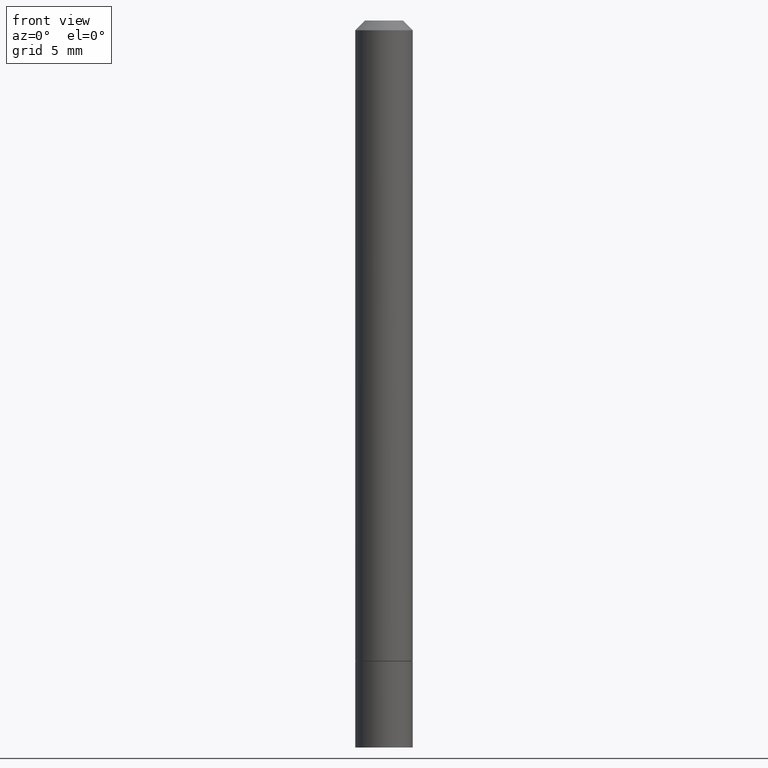
[diagram: clean part render]
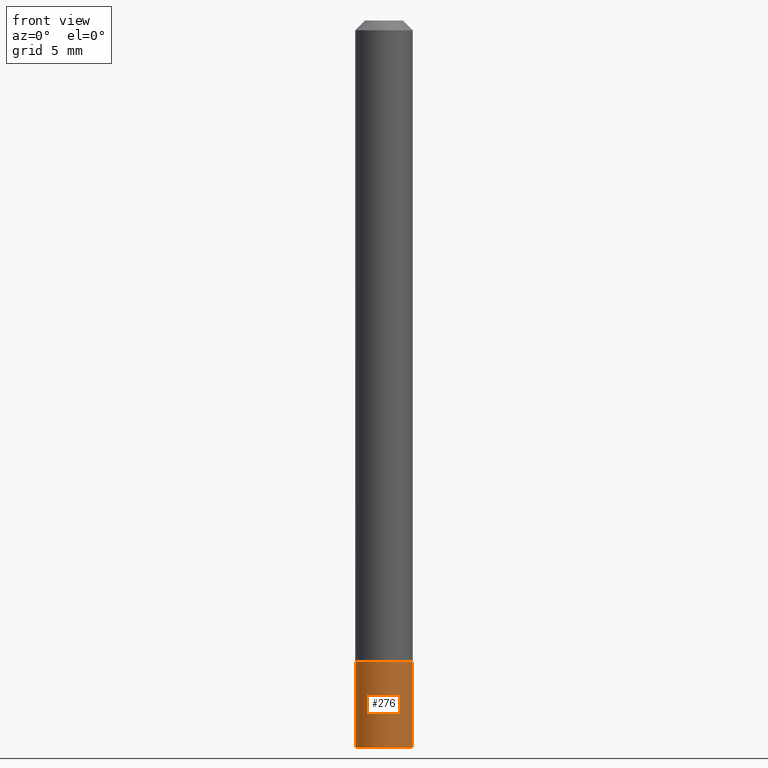
[diagram: same view with one face highlighted and labeled with its STEP entity id]
A machine part, front view. The second image highlights one B-rep face of the part: STEP entity #276.
In plain terms, the highlighted cylindrical surface (edge-blend (fillet) strip) has radius 1.4999 mm, axis along (-0, 0, 1).
Its self-contained STEP definition (entity closure, byte-faithful):
#1 = VERTEX_POINT ( 'NONE', #292 ) ;
#3 = EDGE_LOOP ( 'NONE', ( #238, #129, #172, #340 ) ) ;
#21 = FACE_OUTER_BOUND ( 'NONE', #3, .T. ) ;
#43 = CYLINDRICAL_SURFACE ( 'NONE', #155, 0.05905000000000000526 ) ;
#46 = LINE ( 'NONE', #130, #110 ) ;
#61 = VERTEX_POINT ( 'NONE', #177 ) ;
#64 = EDGE_CURVE ( 'NONE', #119, #211, #95, .T. ) ;
#86 = AXIS2_PLACEMENT_3D ( 'NONE', #181, #348, #261 ) ;
#94 = DIRECTION ( 'NONE',  ( -2.445468806185136597E-29, 3.491481338843145583E-15, 1.000000000000000000 ) ) ;
#95 = CIRCLE ( 'NONE', #86, 0.05904999999999999832 ) ;
#104 = CIRCLE ( 'NONE', #350, 0.05905000000000001914 ) ;
#105 = DIRECTION ( 'NONE',  ( -2.445468806185136597E-29, 3.491481338843145583E-15, 1.000000000000000000 ) ) ;
#110 = VECTOR ( 'NONE', #157, 39.37007874015748143 ) ;
#119 = VERTEX_POINT ( 'NONE', #194 ) ;
#129 = ORIENTED_EDGE ( 'NONE', *, *, #287, .T. ) ;
#130 = CARTESIAN_POINT ( 'NONE',  ( -0.05905000000000000526, 4.195754854663391971E-16, -2.904631170795522242E-30 ) ) ;
#151 = LINE ( 'NONE', #185, #170 ) ;
#155 = AXIS2_PLACEMENT_3D ( 'NONE', #357, #105, #327 ) ;
#157 = DIRECTION ( 'NONE',  ( -2.445468806185136877E-29, 3.491481338843145188E-15, 1.000000000000000000 ) ) ;
#170 = VECTOR ( 'NONE', #214, 39.37007874015748143 ) ;
#172 = ORIENTED_EDGE ( 'NONE', *, *, #186, .T. ) ;
#177 = CARTESIAN_POINT ( 'NONE',  ( -0.05905000000000002608, -4.494684498955387902E-15, -1.496099999999999985 ) ) ;
#181 = CARTESIAN_POINT ( 'NONE',  ( 3.225328808477576615E-29, -4.604914737800224341E-15, -1.318899999999999961 ) ) ;
#185 = CARTESIAN_POINT ( 'NONE',  ( 0.05905000000000000526, -4.123439461173741313E-16, 2.879382386107500571E-30 ) ) ;
#186 = EDGE_CURVE ( 'NONE', #1, #211, #151, .T. ) ;
#194 = CARTESIAN_POINT ( 'NONE',  ( -0.05904999999999999832, -4.494684498955387902E-15, -1.318899999999999961 ) ) ;
#195 = EDGE_CURVE ( 'NONE', #61, #119, #46, .T. ) ;
#211 = VERTEX_POINT ( 'NONE', #355 ) ;
#214 = DIRECTION ( 'NONE',  ( -2.445468806185136877E-29, 3.491481338843145188E-15, 1.000000000000000000 ) ) ;
#236 = CARTESIAN_POINT ( 'NONE',  ( 3.658665880933582389E-29, -5.223605231043229660E-15, -1.496099999999999985 ) ) ;
#238 = ORIENTED_EDGE ( 'NONE', *, *, #195, .F. ) ;
#261 = DIRECTION ( 'NONE',  ( 1.000000000000000000, -6.982962677686273021E-15, 0.000000000000000000 ) ) ;
#276 = ADVANCED_FACE ( 'NONE', ( #21 ), #43, .T. ) ;
#287 = EDGE_CURVE ( 'NONE', #61, #1, #104, .T. ) ;
#291 = DIRECTION ( 'NONE',  ( 1.000000000000000000, -6.982962677686270655E-15, 0.000000000000000000 ) ) ;
#292 = CARTESIAN_POINT ( 'NONE',  ( 0.05905000000000001914, -5.635949177160603791E-15, -1.496099999999999985 ) ) ;
#327 = DIRECTION ( 'NONE',  ( 1.000000000000000000, -6.982962677686267499E-15, 4.876176775795936353E-29 ) ) ;
#340 = ORIENTED_EDGE ( 'NONE', *, *, #64, .F. ) ;
#348 = DIRECTION ( 'NONE',  ( -2.445468806185136597E-29, 3.491481338843145583E-15, 1.000000000000000000 ) ) ;
#350 = AXIS2_PLACEMENT_3D ( 'NONE', #236, #94, #291 ) ;
#355 = CARTESIAN_POINT ( 'NONE',  ( 0.05904999999999999832, -5.017258683917598472E-15, -1.318899999999999961 ) ) ;
#357 = CARTESIAN_POINT ( 'NONE',  ( 0.000000000000000000, 0.000000000000000000, 0.000000000000000000 ) ) ;